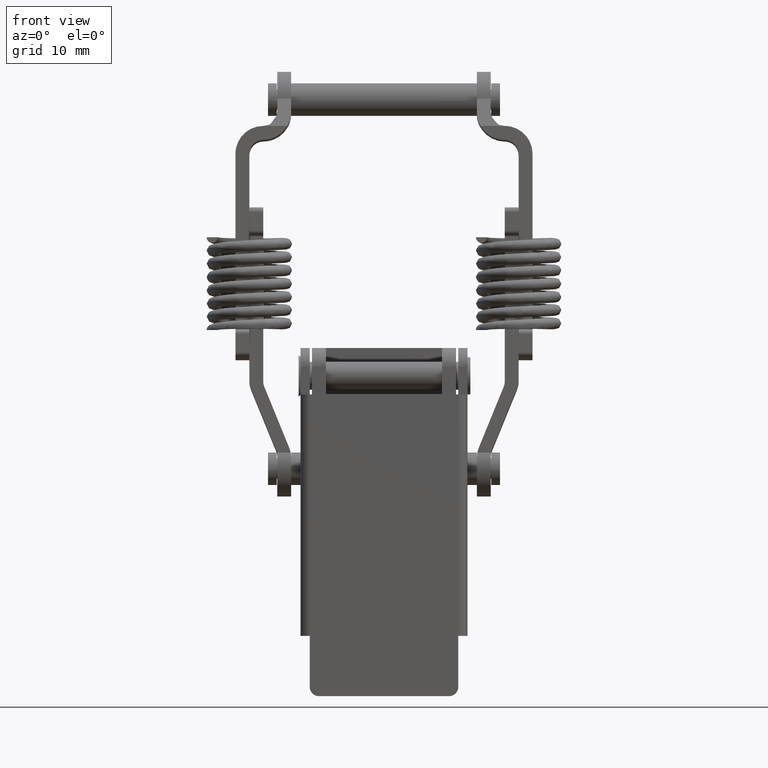
[diagram: clean part render]
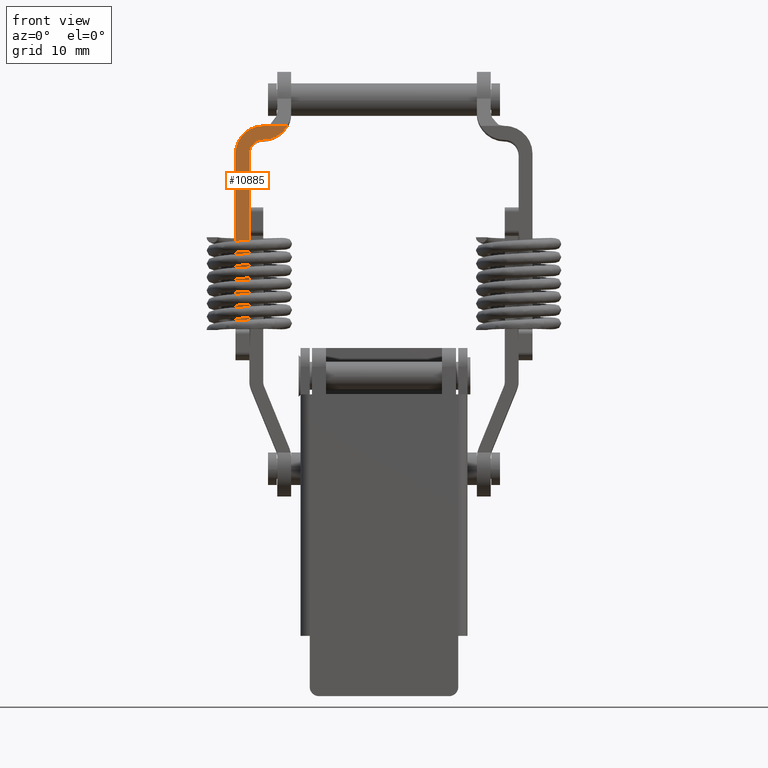
[diagram: same view with one face highlighted and labeled with its STEP entity id]
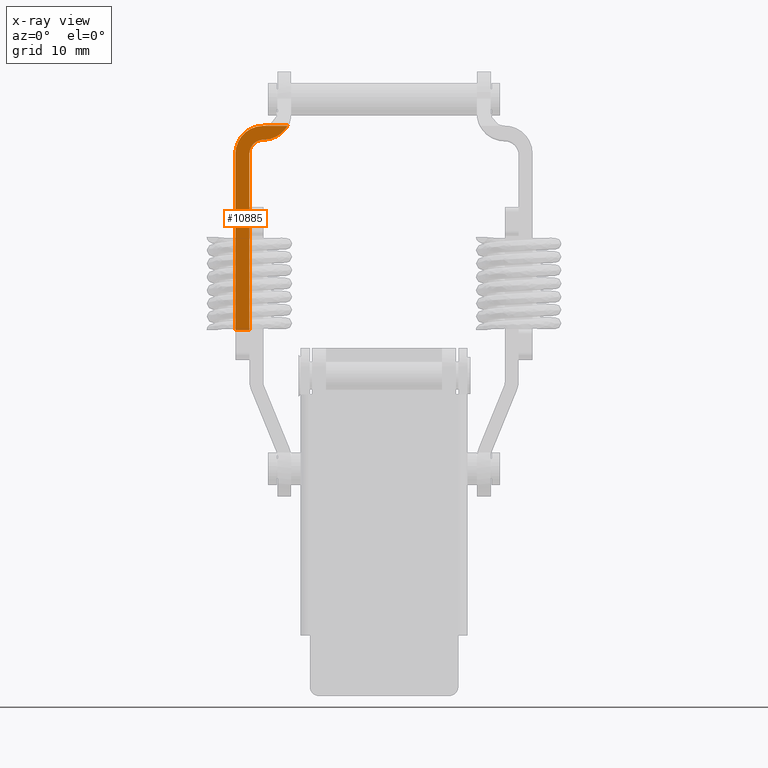
[diagram: x-ray of the same camera — body ghosted, the highlighted face saturated]
A machine part, front view. The second image highlights one B-rep face of the part: STEP entity #10885.
The next image is the same camera in x-ray: the body ghosted, the highlighted face saturated — about 0% of this face is hidden behind the body in this view.
In plain terms, the highlighted face is a freeform B-spline surface patch.
Its self-contained STEP definition (entity closure, byte-faithful):
#10106=CARTESIAN_POINT('',(-12.999999999973021,-9.505187885589310,35.750456453793653));
#10107=VERTEX_POINT('',#10106);
#10108=CARTESIAN_POINT('',(-15.999999999961300,-9.505187885590150,32.750456453793653));
#10109=VERTEX_POINT('',#10108);
#10110=CARTESIAN_POINT('',(-12.999999999973021,-9.505187885589310,35.750456453793653));
#10111=CARTESIAN_POINT('',(-15.999999999961306,-9.505187885589310,35.750456453793653));
#10112=CARTESIAN_POINT('',(-15.999999999961300,-9.505187885590150,32.750456453793653));
#10120=(BOUNDED_CURVE()B_SPLINE_CURVE(2,(#10110,#10111,#10112),.UNSPECIFIED.,.F.,.U.)CURVE()GEOMETRIC_REPRESENTATION_ITEM()QUASI_UNIFORM_CURVE()RATIONAL_B_SPLINE_CURVE((1.0,0.707106781186548,1.0))REPRESENTATION_ITEM(''));
#10121=EDGE_CURVE('',#10107,#10109,#10120,.T.);
#10167=CARTESIAN_POINT('',(-12.999999999961259,-9.505187885589731,34.250456453794349));
#10168=VERTEX_POINT('',#10167);
#10169=CARTESIAN_POINT('',(-10.401923788620140,-9.505187885589310,35.750456453793653));
#10170=VERTEX_POINT('',#10169);
#10171=CARTESIAN_POINT('',(-12.999999999961259,-9.505187885589731,34.250456453794349));
#10172=CARTESIAN_POINT('',(-11.267949192400796,-9.505187885589731,34.250456453801178));
#10173=CARTESIAN_POINT('',(-10.401923788620159,-9.505187885589310,35.750456453793660));
#10181=(BOUNDED_CURVE()B_SPLINE_CURVE(2,(#10171,#10172,#10173),.UNSPECIFIED.,.F.,.U.)CURVE()GEOMETRIC_REPRESENTATION_ITEM()QUASI_UNIFORM_CURVE()RATIONAL_B_SPLINE_CURVE((1.0,0.866025403785490,1.0))REPRESENTATION_ITEM(''));
#10182=EDGE_CURVE('',#10168,#10170,#10181,.T.);
#10346=CARTESIAN_POINT('',(-14.499999999961201,-9.505187885590150,32.750456453794357));
#10347=VERTEX_POINT('',#10346);
#10348=CARTESIAN_POINT('',(-14.499999999961259,-9.505187885590180,32.750456453794357));
#10349=CARTESIAN_POINT('',(-14.499999999961267,-9.505187885589759,34.250456453794357));
#10350=CARTESIAN_POINT('',(-12.999999999961259,-9.505187885589759,34.250456453794357));
#10358=(BOUNDED_CURVE()B_SPLINE_CURVE(2,(#10348,#10349,#10350),.UNSPECIFIED.,.F.,.U.)CURVE()GEOMETRIC_REPRESENTATION_ITEM()QUASI_UNIFORM_CURVE()RATIONAL_B_SPLINE_CURVE((1.0,0.707106781186548,1.0))REPRESENTATION_ITEM(''));
#10359=EDGE_CURVE('',#10347,#10168,#10358,.T.);
#10693=CARTESIAN_POINT('',(-14.499999999961201,-9.505187885595460,13.750456453793619));
#10694=VERTEX_POINT('',#10693);
#10695=CARTESIAN_POINT('',(-14.499999999961201,-9.505187885590150,32.750456453794357));
#10696=CARTESIAN_POINT('',(-14.499999999961201,-9.505187885595460,13.750456453793619));
#10697=QUASI_UNIFORM_CURVE('',1,(#10695,#10696),.UNSPECIFIED.,.F.,.U.);
#10698=EDGE_CURVE('',#10347,#10694,#10697,.T.);
#10846=CARTESIAN_POINT('',(-15.999999999961251,-9.505187885595460,13.750456453793619));
#10847=VERTEX_POINT('',#10846);
#10855=CARTESIAN_POINT('',(-14.499999999961201,-9.505187885595460,13.750456453793619));
#10856=CARTESIAN_POINT('',(-15.999999999961251,-9.505187885595460,13.750456453793619));
#10857=QUASI_UNIFORM_CURVE('',1,(#10855,#10856),.UNSPECIFIED.,.F.,.U.);
#10858=EDGE_CURVE('',#10694,#10847,#10857,.T.);
#10863=CARTESIAN_POINT('',(-16.279623875867369,-9.505187885595774,12.651556702954140));
#10864=CARTESIAN_POINT('',(-16.279623875867369,-9.505187885589001,36.849356991414432));
#10865=CARTESIAN_POINT('',(-10.122300162967580,-9.505187885595774,12.651556702954140));
#10866=CARTESIAN_POINT('',(-10.122300162967580,-9.505187885589001,36.849356991414432));
#10867=B_SPLINE_SURFACE_WITH_KNOTS('',1,1,((#10863,#10865),(#10864,#10866)),.UNSPECIFIED.,.F.,.F.,.U.,(2,2),(2,2),(0.0,24.197800288460289),(0.0,6.157323712899798),.UNSPECIFIED.);
#10868=ORIENTED_EDGE('',*,*,#10359,.T.);
#10869=ORIENTED_EDGE('',*,*,#10182,.T.);
#10870=CARTESIAN_POINT('',(-10.401923788620140,-9.505187885589310,35.750456453793653));
#10871=CARTESIAN_POINT('',(-12.999999999973021,-9.505187885589310,35.750456453793653));
#10872=QUASI_UNIFORM_CURVE('',1,(#10870,#10871),.UNSPECIFIED.,.F.,.U.);
#10873=EDGE_CURVE('',#10170,#10107,#10872,.T.);
#10874=ORIENTED_EDGE('',*,*,#10873,.T.);
#10875=ORIENTED_EDGE('',*,*,#10121,.T.);
#10876=CARTESIAN_POINT('',(-15.999999999961300,-9.505187885590150,32.750456453793653));
#10877=CARTESIAN_POINT('',(-15.999999999961251,-9.505187885595460,13.750456453793619));
#10878=QUASI_UNIFORM_CURVE('',1,(#10876,#10877),.UNSPECIFIED.,.F.,.U.);
#10879=EDGE_CURVE('',#10109,#10847,#10878,.T.);
#10880=ORIENTED_EDGE('',*,*,#10879,.T.);
#10881=ORIENTED_EDGE('',*,*,#10858,.F.);
#10882=ORIENTED_EDGE('',*,*,#10698,.F.);
#10883=EDGE_LOOP('',(#10868,#10869,#10874,#10875,#10880,#10881,#10882));
#10884=FACE_OUTER_BOUND('',#10883,.T.);
#10885=ADVANCED_FACE('',(#10884),#10867,.F.);